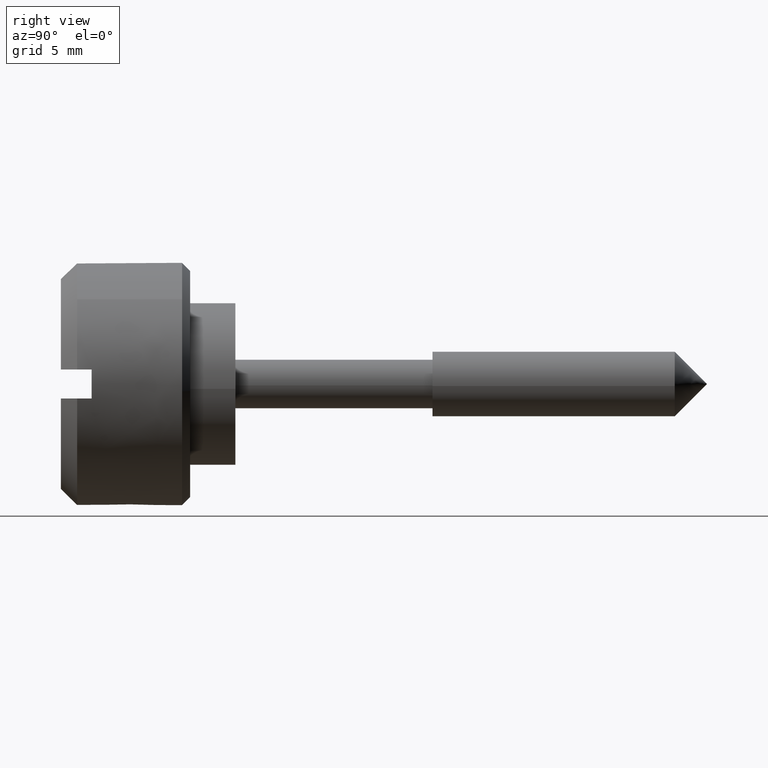
[diagram: clean part render]
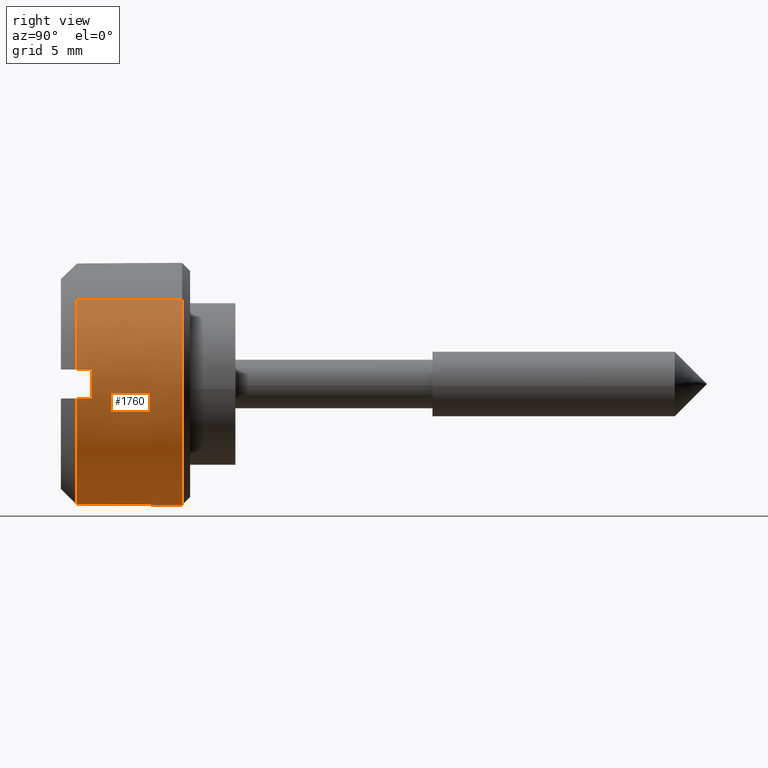
[diagram: same view with one face highlighted and labeled with its STEP entity id]
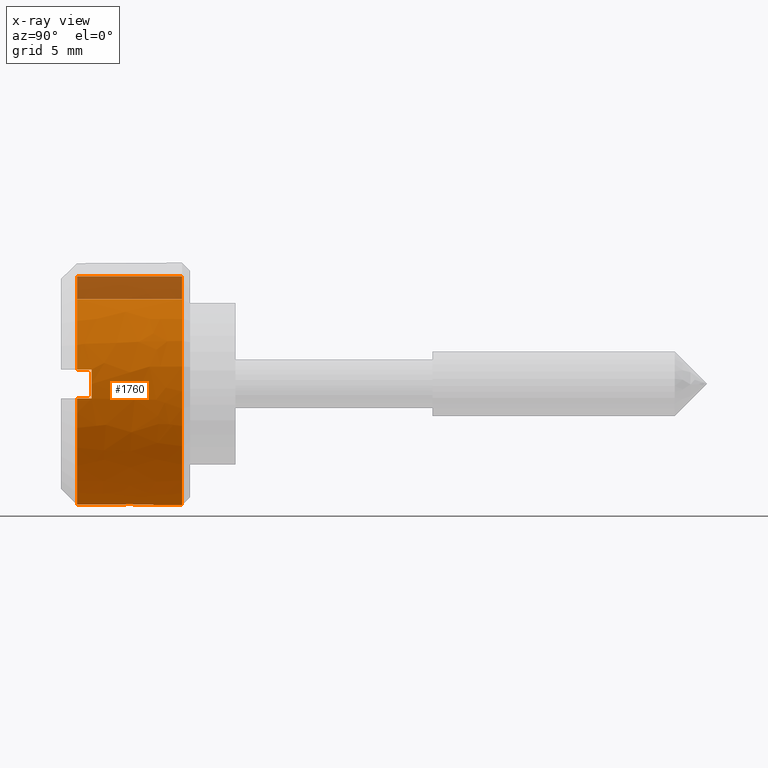
[diagram: x-ray of the same camera — body ghosted, the highlighted face saturated]
A machine part, right view. The second image highlights one B-rep face of the part: STEP entity #1760.
The next image is the same camera in x-ray: the body ghosted, the highlighted face saturated — about 10% of this face is hidden behind the body in this view.
In plain terms, the highlighted face is a freeform B-spline surface patch.
Its self-contained STEP definition (entity closure, byte-faithful):
#1417=CARTESIAN_POINT('',(7.499899999988652,7.447571447728249,0.885256760015521));
#1418=VERTEX_POINT('',#1417);
#1419=CARTESIAN_POINT('',(7.499900000000000,0.0,-7.500000000000000));
#1420=VERTEX_POINT('',#1419);
#1421=CARTESIAN_POINT('',(7.499899999988652,7.447571447728250,0.885256760015521));
#1422=CARTESIAN_POINT('',(7.499900000000000,7.500000000000000,0.444180897478755));
#1423=CARTESIAN_POINT('',(7.499900000000000,7.500000000000000,0.0));
#1424=CARTESIAN_POINT('',(7.499900000000000,7.500000000000000,-7.500000000000000));
#1425=CARTESIAN_POINT('',(7.499900000000000,0.0,-7.500000000000000));
#1433=(BOUNDED_CURVE()B_SPLINE_CURVE(2,(#1421,#1422,#1423,#1424,#1425),.UNSPECIFIED.,.F.,.U.)B_SPLINE_CURVE_WITH_KNOTS((3,2,3),(0.229562473511628,0.250000000000000,0.500000000000000),.UNSPECIFIED.)CURVE()GEOMETRIC_REPRESENTATION_ITEM()RATIONAL_B_SPLINE_CURVE((0.956026754180014,0.976055948328942,1.0,0.707106781186547,1.0))REPRESENTATION_ITEM(''));
#1434=EDGE_CURVE('',#1418,#1420,#1433,.T.);
#1475=CARTESIAN_POINT('',(7.499899999999781,-7.486010988164120,-0.457864046513102));
#1476=VERTEX_POINT('',#1475);
#1482=CARTESIAN_POINT('',(7.499900000000000,0.0,-7.500000000000000));
#1483=CARTESIAN_POINT('',(7.499900000000000,-7.055295501789569,-7.500000000000000));
#1484=CARTESIAN_POINT('',(7.499899999999781,-7.486010988164121,-0.457864046513102));
#1492=(BOUNDED_CURVE()B_SPLINE_CURVE(2,(#1482,#1483,#1484),.UNSPECIFIED.,.F.,.U.)B_SPLINE_CURVE_WITH_KNOTS((3,3),(0.500000000000000,0.739332962241892),.UNSPECIFIED.)CURVE()GEOMETRIC_REPRESENTATION_ITEM()RATIONAL_B_SPLINE_CURVE((1.0,0.719603993283256,0.976072041673037))REPRESENTATION_ITEM(''));
#1493=EDGE_CURVE('',#1420,#1476,#1492,.T.);
#1516=CARTESIAN_POINT('',(7.499900000000000,3.440545476961388,6.664281418199603));
#1517=VERTEX_POINT('',#1516);
#1518=CARTESIAN_POINT('',(7.499900000000000,3.440545476961388,6.664281418199604));
#1519=CARTESIAN_POINT('',(7.499900000000002,6.977708690052852,4.838162420869137));
#1520=CARTESIAN_POINT('',(7.499899999988652,7.447571447728250,0.885256760015521));
#1528=(BOUNDED_CURVE()B_SPLINE_CURVE(2,(#1518,#1519,#1520),.UNSPECIFIED.,.F.,.U.)B_SPLINE_CURVE_WITH_KNOTS((3,3),(0.078028427142425,0.229562473511628),.UNSPECIFIED.)CURVE()GEOMETRIC_REPRESENTATION_ITEM()RATIONAL_B_SPLINE_CURVE((0.874232389058089,0.807520288065911,0.956026754180014))REPRESENTATION_ITEM(''));
#1529=EDGE_CURVE('',#1517,#1418,#1528,.T.);
#1546=CARTESIAN_POINT('',(7.499900000000023,-5.359268461754884,5.246736276471250));
#1547=VERTEX_POINT('',#1546);
#1561=CARTESIAN_POINT('',(7.499899999999781,-7.486010988164120,-0.457864046513102));
#1562=CARTESIAN_POINT('',(7.499900000000000,-7.500000000000000,-0.229145724741083));
#1563=CARTESIAN_POINT('',(7.499900000000000,-7.500000000000000,0.0));
#1564=CARTESIAN_POINT('',(7.499900000000000,-7.499999999999999,3.060090148675428));
#1565=CARTESIAN_POINT('',(7.499900000000023,-5.359268461754884,5.246736276471249));
#1573=(BOUNDED_CURVE()B_SPLINE_CURVE(2,(#1561,#1562,#1563,#1564,#1565),.UNSPECIFIED.,.F.,.U.)B_SPLINE_CURVE_WITH_KNOTS((3,2,3),(0.739332962241892,0.750000000000000,0.873399080895589),.UNSPECIFIED.)CURVE()GEOMETRIC_REPRESENTATION_ITEM()RATIONAL_B_SPLINE_CURVE((0.976072041673038,0.987502787903292,1.0,0.855428983991477,0.853577411979700))REPRESENTATION_ITEM(''));
#1574=EDGE_CURVE('',#1476,#1547,#1573,.T.);
#1611=CARTESIAN_POINT('',(7.662397500000003,3.440545475342017,6.664281419035630));
#1612=CARTESIAN_POINT('',(7.662397500000003,4.441661192956506,6.147438876538266));
#1613=CARTESIAN_POINT('',(7.662397500000002,5.246736403621271,5.359268337274715));
#1614=CARTESIAN_POINT('',(7.662397500000002,10.606004740895987,0.112531933653444));
#1615=CARTESIAN_POINT('',(7.662397500000002,5.359268337274715,-5.246736403621271));
#1616=CARTESIAN_POINT('',(7.662397500000002,0.112531933653444,-10.606004740895987));
#1617=CARTESIAN_POINT('',(7.662397500000002,-5.246736403621271,-5.359268337274715));
#1618=CARTESIAN_POINT('',(7.662397500000002,-10.606004740895987,-0.112531933653444));
#1619=CARTESIAN_POINT('',(7.662397500000002,-5.359268337274715,5.246736403621271));
#1620=CARTESIAN_POINT('',(0.833440062500015,3.440545475342017,6.664281419035630));
#1621=CARTESIAN_POINT('',(0.833440062500014,4.441661192956506,6.147438876538266));
#1622=CARTESIAN_POINT('',(0.833440062500014,5.246736403621271,5.359268337274715));
#1623=CARTESIAN_POINT('',(0.833440062500014,10.606004740895987,0.112531933653444));
#1624=CARTESIAN_POINT('',(0.833440062500014,5.359268337274715,-5.246736403621271));
#1625=CARTESIAN_POINT('',(0.833440062500014,0.112531933653444,-10.606004740895987));
#1626=CARTESIAN_POINT('',(0.833440062500014,-5.246736403621271,-5.359268337274715));
#1627=CARTESIAN_POINT('',(0.833440062500014,-10.606004740895987,-0.112531933653444));
#1628=CARTESIAN_POINT('',(0.833440062500014,-5.359268337274715,5.246736403621271));
#1636=(BOUNDED_SURFACE()B_SPLINE_SURFACE(2,1,((#1611,#1620),(#1612,#1621),(#1613,#1622),(#1614,#1623),(#1615,#1624),(#1616,#1625),(#1617,#1626),(#1618,#1627),(#1619,#1628)),.UNSPECIFIED.,.F.,.F.,.U.)B_SPLINE_SURFACE_WITH_KNOTS((3,2,2,2,3),(2,2),(0.0,2.485281374238570,14.911688245431421,27.338095116624270,39.764501987817120),(0.0,6.828957437499988),.UNSPECIFIED.)GEOMETRIC_REPRESENTATION_ITEM()RATIONAL_B_SPLINE_SURFACE(((0.906274169979695,0.906274169979695),(0.941421356237309,0.941421356237309),(1.0,1.0),(0.707106781186548,0.707106781186548),(1.0,1.0),(0.707106781186548,0.707106781186548),(1.0,1.0),(0.707106781186548,0.707106781186548),(1.0,1.0)))REPRESENTATION_ITEM('')SURFACE());
#1637=CARTESIAN_POINT('',(1.000000000000014,3.440542728658084,6.664282837055192));
#1638=VERTEX_POINT('',#1637);
#1639=CARTESIAN_POINT('',(1.000000000000014,7.445804187594510,0.900000000000000));
#1640=VERTEX_POINT('',#1639);
#1641=CARTESIAN_POINT('',(1.000000000000014,3.440542728658084,6.664282837055192));
#1642=CARTESIAN_POINT('',(1.000000000000014,6.969257317165011,4.842527426032279));
#1643=CARTESIAN_POINT('',(1.000000000000014,7.445804187594514,0.900000000000002));
#1651=(BOUNDED_CURVE()B_SPLINE_CURVE(2,(#1641,#1642,#1643),.UNSPECIFIED.,.F.,.U.)B_SPLINE_CURVE_WITH_KNOTS((3,3),(0.667644921249080,1.0),.UNSPECIFIED.)CURVE()GEOMETRIC_REPRESENTATION_ITEM()RATIONAL_B_SPLINE_CURVE((0.887820988826118,0.832713376674246,1.0))REPRESENTATION_ITEM(''));
#1652=EDGE_CURVE('',#1638,#1640,#1651,.T.);
#1653=ORIENTED_EDGE('',*,*,#1652,.F.);
#1654=CARTESIAN_POINT('',(7.499900000000000,3.440545476961388,6.664281418199603));
#1655=CARTESIAN_POINT('',(1.000000000000014,3.440542728658084,6.664282837055192));
#1656=QUASI_UNIFORM_CURVE('',1,(#1654,#1655),.UNSPECIFIED.,.F.,.U.);
#1657=EDGE_CURVE('',#1517,#1638,#1656,.T.);
#1658=ORIENTED_EDGE('',*,*,#1657,.F.);
#1659=ORIENTED_EDGE('',*,*,#1529,.T.);
#1660=ORIENTED_EDGE('',*,*,#1434,.T.);
#1661=ORIENTED_EDGE('',*,*,#1493,.T.);
#1662=ORIENTED_EDGE('',*,*,#1574,.T.);
#1663=CARTESIAN_POINT('',(1.000000000000014,-5.359269523374849,5.246735192081132));
#1664=VERTEX_POINT('',#1663);
#1665=CARTESIAN_POINT('',(7.499900000000023,-5.359268461754884,5.246736276471250));
#1666=CARTESIAN_POINT('',(1.000000000000014,-5.359269523374849,5.246735192081132));
#1667=QUASI_UNIFORM_CURVE('',1,(#1665,#1666),.UNSPECIFIED.,.F.,.U.);
#1668=EDGE_CURVE('',#1547,#1664,#1667,.T.);
#1669=ORIENTED_EDGE('',*,*,#1668,.T.);
#1670=CARTESIAN_POINT('',(1.000000000000014,-7.445804187594510,0.900000000000000));
#1671=VERTEX_POINT('',#1670);
#1672=CARTESIAN_POINT('',(1.000000000000014,-7.445804187594514,0.899999999999998));
#1673=CARTESIAN_POINT('',(1.000000000000014,-7.140295468068608,3.427509003547368));
#1674=CARTESIAN_POINT('',(1.000000000000014,-5.359269523374850,5.246735192081132));
#1682=(BOUNDED_CURVE()B_SPLINE_CURVE(2,(#1672,#1673,#1674),.UNSPECIFIED.,.F.,.U.)B_SPLINE_CURVE_WITH_KNOTS((3,3),(0.0,0.226679079294635),.UNSPECIFIED.)CURVE()GEOMETRIC_REPRESENTATION_ITEM()RATIONAL_B_SPLINE_CURVE((1.0,0.885904021998685,0.875260728975606))REPRESENTATION_ITEM(''));
#1683=EDGE_CURVE('',#1671,#1664,#1682,.T.);
#1684=ORIENTED_EDGE('',*,*,#1683,.F.);
#1685=CARTESIAN_POINT('',(1.900000000000000,-7.445804187594550,0.900000000000000));
#1686=VERTEX_POINT('',#1685);
#1687=CARTESIAN_POINT('',(1.000000000000014,-7.445804187594510,0.900000000000000));
#1688=CARTESIAN_POINT('',(1.900000000000000,-7.445804187594550,0.900000000000000));
#1689=QUASI_UNIFORM_CURVE('',1,(#1687,#1688),.UNSPECIFIED.,.F.,.U.);
#1690=EDGE_CURVE('',#1671,#1686,#1689,.T.);
#1691=ORIENTED_EDGE('',*,*,#1690,.T.);
#1692=CARTESIAN_POINT('',(1.900000000000000,-7.445804187594550,-0.900000000000013));
#1693=VERTEX_POINT('',#1692);
#1694=CARTESIAN_POINT('',(1.900000000000000,-7.445804187594550,0.900000000000000));
#1695=CARTESIAN_POINT('',(1.900000000000000,-7.554590287737941,-8.239937E-015));
#1696=CARTESIAN_POINT('',(1.900000000000000,-7.445804187594550,-0.900000000000013));
#1704=(BOUNDED_CURVE()B_SPLINE_CURVE(2,(#1694,#1695,#1696),.UNSPECIFIED.,.F.,.U.)CURVE()GEOMETRIC_REPRESENTATION_ITEM()QUASI_UNIFORM_CURVE()RATIONAL_B_SPLINE_CURVE((1.0,0.992773891679268,1.0))REPRESENTATION_ITEM(''));
#1705=EDGE_CURVE('',#1686,#1693,#1704,.T.);
#1706=ORIENTED_EDGE('',*,*,#1705,.T.);
#1707=CARTESIAN_POINT('',(1.000000000000014,-7.445804187594510,-0.900000000000013));
#1708=VERTEX_POINT('',#1707);
#1709=CARTESIAN_POINT('',(1.900000000000000,-7.445804187594550,-0.900000000000013));
#1710=CARTESIAN_POINT('',(1.000000000000014,-7.445804187594510,-0.900000000000013));
#1711=QUASI_UNIFORM_CURVE('',1,(#1709,#1710),.UNSPECIFIED.,.F.,.U.);
#1712=EDGE_CURVE('',#1693,#1708,#1711,.T.);
#1713=ORIENTED_EDGE('',*,*,#1712,.T.);
#1714=CARTESIAN_POINT('',(1.000000000000014,7.445804187594510,-0.900000000000013));
#1715=VERTEX_POINT('',#1714);
#1716=CARTESIAN_POINT('',(1.000000000000014,7.445804187594512,-0.900000000000014));
#1717=CARTESIAN_POINT('',(1.000000000000014,6.648039453209375,-7.500000000000003));
#1718=CARTESIAN_POINT('',(1.000000000000014,0.0,-7.500000000000000));
#1719=CARTESIAN_POINT('',(1.000000000000014,-6.648039453209375,-7.500000000000003));
#1720=CARTESIAN_POINT('',(1.000000000000014,-7.445804187594512,-0.900000000000014));
#1728=(BOUNDED_CURVE()B_SPLINE_CURVE(2,(#1716,#1717,#1718,#1719,#1720),.UNSPECIFIED.,.F.,.U.)B_SPLINE_CURVE_WITH_KNOTS((3,2,3),(0.0,0.500000000000000,1.0),.UNSPECIFIED.)CURVE()GEOMETRIC_REPRESENTATION_ITEM()RATIONAL_B_SPLINE_CURVE((1.0,0.748331477354789,1.0,0.748331477354789,1.0))REPRESENTATION_ITEM(''));
#1729=EDGE_CURVE('',#1715,#1708,#1728,.T.);
#1730=ORIENTED_EDGE('',*,*,#1729,.F.);
#1731=CARTESIAN_POINT('',(1.900000000000000,7.445804187594550,-0.900000000000013));
#1732=VERTEX_POINT('',#1731);
#1733=CARTESIAN_POINT('',(1.000000000000014,7.445804187594510,-0.900000000000013));
#1734=CARTESIAN_POINT('',(1.900000000000000,7.445804187594550,-0.900000000000013));
#1735=QUASI_UNIFORM_CURVE('',1,(#1733,#1734),.UNSPECIFIED.,.F.,.U.);
#1736=EDGE_CURVE('',#1715,#1732,#1735,.T.);
#1737=ORIENTED_EDGE('',*,*,#1736,.T.);
#1738=CARTESIAN_POINT('',(1.900000000000000,7.445804187594550,0.900000000000000));
#1739=VERTEX_POINT('',#1738);
#1740=CARTESIAN_POINT('',(1.900000000000000,7.445804187594550,-0.900000000000013));
#1741=CARTESIAN_POINT('',(1.900000000000000,7.554590287737940,-1.203464E-014));
#1742=CARTESIAN_POINT('',(1.900000000000000,7.445804187594550,0.900000000000000));
#1750=(BOUNDED_CURVE()B_SPLINE_CURVE(2,(#1740,#1741,#1742),.UNSPECIFIED.,.F.,.U.)CURVE()GEOMETRIC_REPRESENTATION_ITEM()QUASI_UNIFORM_CURVE()RATIONAL_B_SPLINE_CURVE((1.0,0.992773891679269,1.0))REPRESENTATION_ITEM(''));
#1751=EDGE_CURVE('',#1732,#1739,#1750,.T.);
#1752=ORIENTED_EDGE('',*,*,#1751,.T.);
#1753=CARTESIAN_POINT('',(1.900000000000000,7.445804187594550,0.900000000000000));
#1754=CARTESIAN_POINT('',(1.000000000000014,7.445804187594510,0.900000000000000));
#1755=QUASI_UNIFORM_CURVE('',1,(#1753,#1754),.UNSPECIFIED.,.F.,.U.);
#1756=EDGE_CURVE('',#1739,#1640,#1755,.T.);
#1757=ORIENTED_EDGE('',*,*,#1756,.T.);
#1758=EDGE_LOOP('',(#1653,#1658,#1659,#1660,#1661,#1662,#1669,#1684,#1691,#1706,#1713,#1730,#1737,#1752,#1757));
#1759=FACE_OUTER_BOUND('',#1758,.T.);
#1760=ADVANCED_FACE('',(#1759),#1636,.T.);